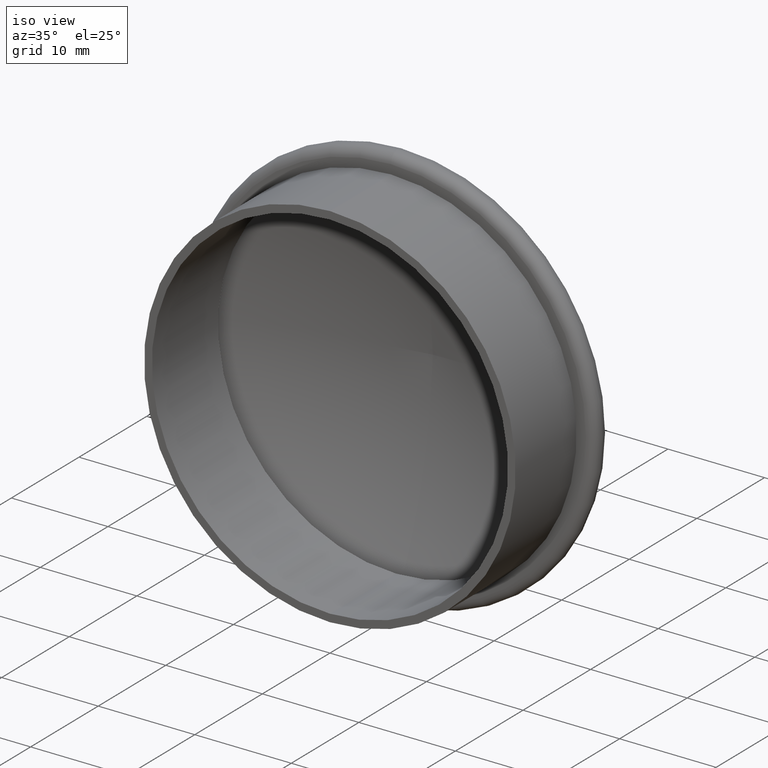
[diagram: clean part render]
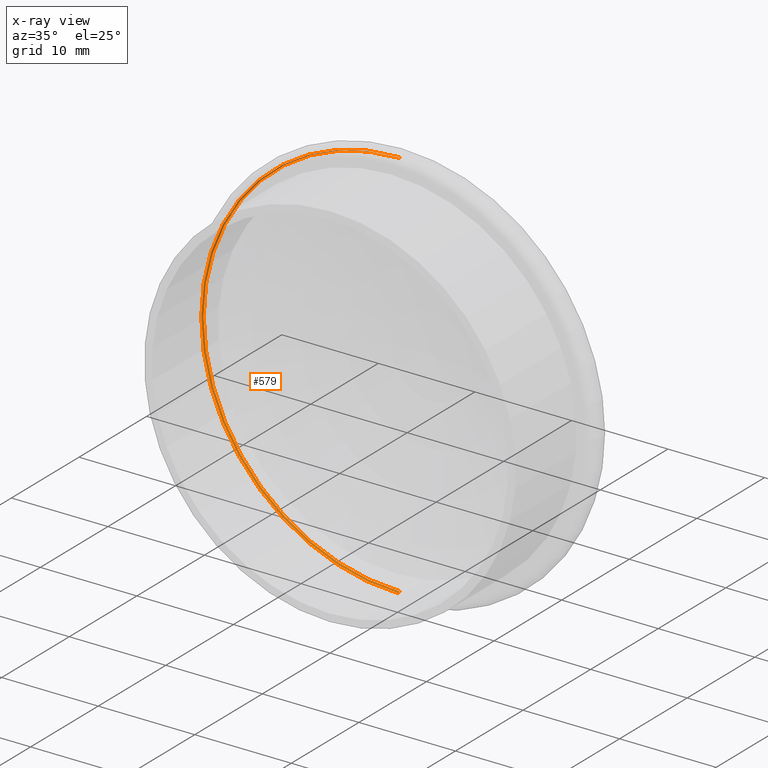
[diagram: x-ray — body ghosted, one internal face saturated and labeled with its STEP entity id]
A machine part, iso view, then the same camera in x-ray: the body is ghosted and one INTERNAL B-rep face — a face not visible from any outside direction — is saturated and labeled: STEP entity #579.
In plain terms, the highlighted toroidal blend (fillet) surface has major radius 20.2 mm and minor (blend) radius 0.2 mm.
Its self-contained STEP definition (entity closure, byte-faithful):
#20 = CIRCLE ( 'NONE', #94, 0.1999999999999987900 ) ;
#37 = FACE_OUTER_BOUND ( 'NONE', #588, .T. ) ;
#58 = DIRECTION ( 'NONE',  ( 1.000000000000000000, 0.0000000000000000000, -1.224646799147353200E-016 ) ) ;
#63 = DIRECTION ( 'NONE',  ( 0.0000000000000000000, 0.0000000000000000000, -1.000000000000000000 ) ) ;
#67 = DIRECTION ( 'NONE',  ( -0.0000000000000000000, -1.000000000000000000, -0.0000000000000000000 ) ) ;
#77 = VERTEX_POINT ( 'NONE', #234 ) ;
#81 = EDGE_CURVE ( 'NONE', #77, #270, #619, .T. ) ;
#94 = AXIS2_PLACEMENT_3D ( 'NONE', #247, #58, #461 ) ;
#101 = VERTEX_POINT ( 'NONE', #366 ) ;
#112 = DIRECTION ( 'NONE',  ( -0.0000000000000000000, -1.000000000000000000, -0.0000000000000000000 ) ) ;
#118 = DIRECTION ( 'NONE',  ( -0.0000000000000000000, -1.000000000000000000, -0.0000000000000000000 ) ) ;
#126 = EDGE_CURVE ( 'NONE', #228, #101, #372, .T. ) ;
#161 = ORIENTED_EDGE ( 'NONE', *, *, #126, .F. ) ;
#228 = VERTEX_POINT ( 'NONE', #518 ) ;
#234 = CARTESIAN_POINT ( 'NONE',  ( 2.498279470260600700E-015, 10.10028188096572100, 20.40000000000000200 ) ) ;
#245 = CIRCLE ( 'NONE', #249, 0.1999999999999987900 ) ;
#247 = CARTESIAN_POINT ( 'NONE',  ( 2.473786534277653200E-015, 10.10028188096572100, 20.19999999999999900 ) ) ;
#249 = AXIS2_PLACEMENT_3D ( 'NONE', #318, #599, #316 ) ;
#259 = DIRECTION ( 'NONE',  ( 0.0000000000000000000, 0.0000000000000000000, -1.000000000000000000 ) ) ;
#270 = VERTEX_POINT ( 'NONE', #294 ) ;
#275 = AXIS2_PLACEMENT_3D ( 'NONE', #480, #118, #475 ) ;
#278 = ORIENTED_EDGE ( 'NONE', *, *, #539, .F. ) ;
#294 = CARTESIAN_POINT ( 'NONE',  ( 0.0000000000000000000, 10.10028188096572100, -20.40000000000000200 ) ) ;
#316 = DIRECTION ( 'NONE',  ( 0.0000000000000000000, 0.0000000000000000000, 1.000000000000000000 ) ) ;
#318 = CARTESIAN_POINT ( 'NONE',  ( 0.0000000000000000000, 10.10028188096572100, -20.19999999999999900 ) ) ;
#319 = ORIENTED_EDGE ( 'NONE', *, *, #489, .T. ) ;
#366 = CARTESIAN_POINT ( 'NONE',  ( 0.0000000000000000000, 10.28022550477257900, -20.28729428532989200 ) ) ;
#372 = CIRCLE ( 'NONE', #382, 20.28729428532989200 ) ;
#382 = AXIS2_PLACEMENT_3D ( 'NONE', #566, #67, #259 ) ;
#442 = TOROIDAL_SURFACE ( 'NONE', #596, 20.19999999999999900, 0.2000000000000004300 ) ;
#461 = DIRECTION ( 'NONE',  ( -1.224646799147353900E-016, 0.0000000000000000000, -1.000000000000000000 ) ) ;
#475 = DIRECTION ( 'NONE',  ( 0.0000000000000000000, 0.0000000000000000000, -1.000000000000000000 ) ) ;
#480 = CARTESIAN_POINT ( 'NONE',  ( 0.0000000000000000000, 10.10028188096572100, 0.0000000000000000000 ) ) ;
#489 = EDGE_CURVE ( 'NONE', #228, #77, #20, .T. ) ;
#516 = CARTESIAN_POINT ( 'NONE',  ( 0.0000000000000000000, 10.10028188096572100, 0.0000000000000000000 ) ) ;
#518 = CARTESIAN_POINT ( 'NONE',  ( 2.491378235624782400E-015, 10.28022550477257900, 20.28729428532989200 ) ) ;
#539 = EDGE_CURVE ( 'NONE', #101, #270, #245, .T. ) ;
#566 = CARTESIAN_POINT ( 'NONE',  ( 0.0000000000000000000, 10.28022550477257900, 0.0000000000000000000 ) ) ;
#579 = ADVANCED_FACE ( 'NONE', ( #37 ), #442, .F. ) ;
#588 = EDGE_LOOP ( 'NONE', ( #161, #319, #632, #278 ) ) ;
#596 = AXIS2_PLACEMENT_3D ( 'NONE', #516, #112, #63 ) ;
#599 = DIRECTION ( 'NONE',  ( -1.000000000000000000, 0.0000000000000000000, 0.0000000000000000000 ) ) ;
#619 = CIRCLE ( 'NONE', #275, 20.40000000000000200 ) ;
#632 = ORIENTED_EDGE ( 'NONE', *, *, #81, .T. ) ;